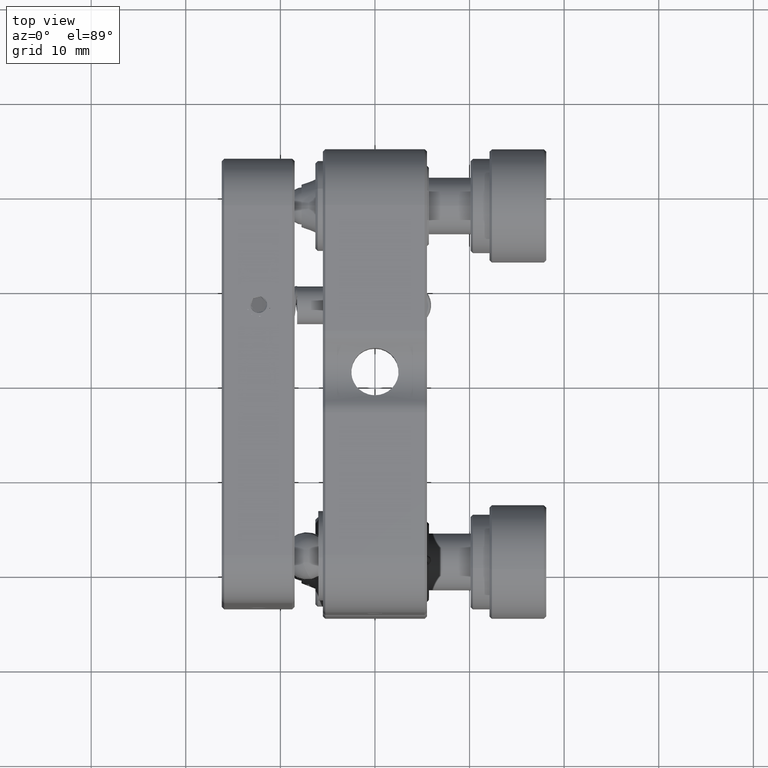
[diagram: clean part render]
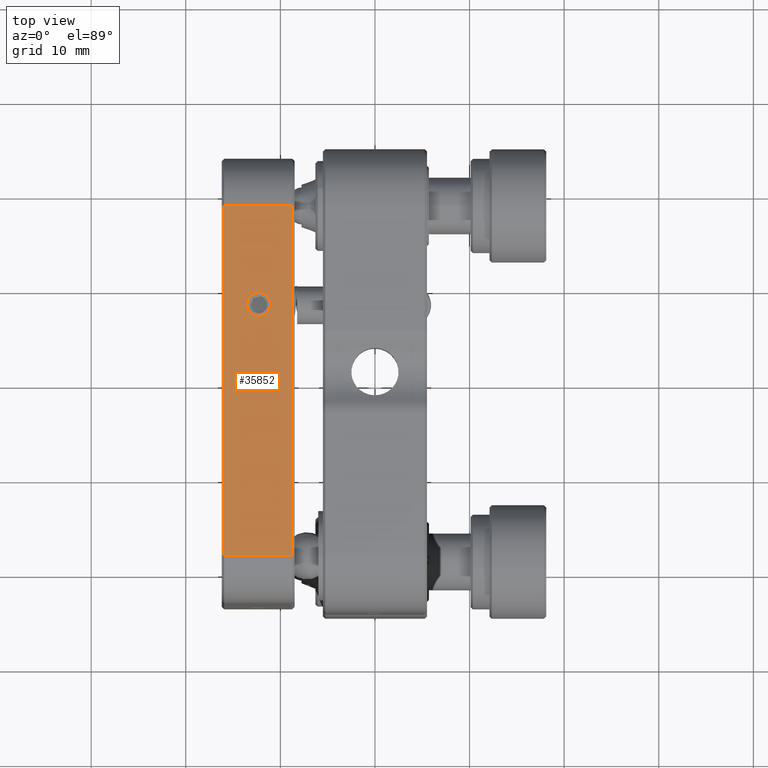
[diagram: same view with one face highlighted and labeled with its STEP entity id]
A machine part, top view. The second image highlights one B-rep face of the part: STEP entity #35852.
In plain terms, the highlighted planar face has unit normal (0, 0, -1).
Its self-contained STEP definition (entity closure, byte-faithful):
#16 = CIRCLE ( 'NONE', #57935, 1.249999999999983791 ) ;
#1458 = DIRECTION ( 'NONE',  ( -1.104617359144156568E-16, 1.000000000000000000, 3.558028576258803208E-16 ) ) ;
#1482 = VECTOR ( 'NONE', #30461, 1000.000000000000000 ) ;
#2207 = LINE ( 'NONE', #10396, #1482 ) ;
#2872 = EDGE_CURVE ( 'NONE', #57773, #40069, #16, .T. ) ;
#4400 = ORIENTED_EDGE ( 'NONE', *, *, #35566, .F. ) ;
#4426 = VERTEX_POINT ( 'NONE', #13703 ) ;
#4996 = EDGE_CURVE ( 'NONE', #24322, #36236, #2207, .T. ) ;
#7125 = CARTESIAN_POINT ( 'NONE',  ( -11.04606781186554088, 8.000000000000095923, 23.49999999999995737 ) ) ;
#7989 = DIRECTION ( 'NONE',  ( 9.734964733003764612E-17, 5.034388981345476361E-16, -1.000000000000000000 ) ) ;
#8949 = DIRECTION ( 'NONE',  ( 9.734964733003772008E-17, 3.558028576258803208E-16, -1.000000000000000000 ) ) ;
#10396 = CARTESIAN_POINT ( 'NONE',  ( -8.496067811865559705, 18.49999999999998224, 23.49999999999996092 ) ) ;
#12358 = ORIENTED_EDGE ( 'NONE', *, *, #34025, .F. ) ;
#12949 = EDGE_LOOP ( 'NONE', ( #4400, #35995, #40502, #12358 ) ) ;
#13703 = CARTESIAN_POINT ( 'NONE',  ( -15.94606781186551281, -18.49999999999993605, 23.50000000000001776 ) ) ;
#13819 = EDGE_CURVE ( 'NONE', #40069, #57773, #40912, .T. ) ;
#14354 = FACE_BOUND ( 'NONE', #24717, .T. ) ;
#16297 = CARTESIAN_POINT ( 'NONE',  ( -15.94606781186545064, 23.50000000000005329, 23.49999999999996092 ) ) ;
#17198 = ORIENTED_EDGE ( 'NONE', *, *, #13819, .T. ) ;
#17269 = DIRECTION ( 'NONE',  ( -1.000000000000000000, -1.104617359144156322E-16, -9.734964733003770775E-17 ) ) ;
#18230 = LINE ( 'NONE', #27733, #30752 ) ;
#22243 = LINE ( 'NONE', #54507, #58930 ) ;
#22630 = CARTESIAN_POINT ( 'NONE',  ( -12.29606781186552489, 8.000000000000095923, 23.49999999999995737 ) ) ;
#23050 = VECTOR ( 'NONE', #1458, 1000.000000000000000 ) ;
#24322 = VERTEX_POINT ( 'NONE', #57998 ) ;
#24717 = EDGE_LOOP ( 'NONE', ( #17198, #43825 ) ) ;
#25456 = LINE ( 'NONE', #16297, #23050 ) ;
#27018 = DIRECTION ( 'NONE',  ( -1.000000000000000000, 0.0000000000000000000, 0.0000000000000000000 ) ) ;
#27733 = CARTESIAN_POINT ( 'NONE',  ( -8.496067811865556152, -18.50000000000000711, 23.49999999999994671 ) ) ;
#28428 = AXIS2_PLACEMENT_3D ( 'NONE', #33588, #8949, #63239 ) ;
#29027 = PLANE ( 'NONE',  #28428 ) ;
#30461 = DIRECTION ( 'NONE',  ( 1.000000000000000000, 1.104617359144156322E-16, 9.734964733003770775E-17 ) ) ;
#30752 = VECTOR ( 'NONE', #17269, 1000.000000000000000 ) ;
#33588 = CARTESIAN_POINT ( 'NONE',  ( -8.496067811865595232, 23.49999999999998224, 23.49999999999996092 ) ) ;
#34025 = EDGE_CURVE ( 'NONE', #4426, #24322, #25456, .T. ) ;
#35566 = EDGE_CURVE ( 'NONE', #46448, #4426, #18230, .T. ) ;
#35852 = ADVANCED_FACE ( 'NONE', ( #14354, #52575 ), #29027, .F. ) ;
#35995 = ORIENTED_EDGE ( 'NONE', *, *, #44394, .F. ) ;
#36236 = VERTEX_POINT ( 'NONE', #59136 ) ;
#38396 = DIRECTION ( 'NONE',  ( 9.734964733003764612E-17, 5.034388981345476361E-16, -1.000000000000000000 ) ) ;
#38616 = CARTESIAN_POINT ( 'NONE',  ( -12.29606781186552489, 8.000000000000095923, 23.49999999999995737 ) ) ;
#40069 = VERTEX_POINT ( 'NONE', #60932 ) ;
#40502 = ORIENTED_EDGE ( 'NONE', *, *, #4996, .F. ) ;
#40912 = CIRCLE ( 'NONE', #62405, 1.249999999999983791 ) ;
#43825 = ORIENTED_EDGE ( 'NONE', *, *, #2872, .T. ) ;
#44394 = EDGE_CURVE ( 'NONE', #36236, #46448, #22243, .T. ) ;
#46448 = VERTEX_POINT ( 'NONE', #48722 ) ;
#48722 = CARTESIAN_POINT ( 'NONE',  ( -8.746067811865557928, -18.50000000000000711, 23.49999999999994671 ) ) ;
#52575 = FACE_OUTER_BOUND ( 'NONE', #12949, .T. ) ;
#54507 = CARTESIAN_POINT ( 'NONE',  ( -8.746067811865557928, -18.50000000000000711, 23.49999999999994671 ) ) ;
#54730 = DIRECTION ( 'NONE',  ( 1.104617359144156568E-16, -1.000000000000000000, -3.558028576258803208E-16 ) ) ;
#57773 = VERTEX_POINT ( 'NONE', #7125 ) ;
#57935 = AXIS2_PLACEMENT_3D ( 'NONE', #38616, #38396, #64114 ) ;
#57998 = CARTESIAN_POINT ( 'NONE',  ( -15.94606781186545064, 18.50000000000004974, 23.49999999999996092 ) ) ;
#58930 = VECTOR ( 'NONE', #54730, 1000.000000000000000 ) ;
#59136 = CARTESIAN_POINT ( 'NONE',  ( -8.746067811865561481, 18.49999999999998224, 23.49999999999996092 ) ) ;
#60932 = CARTESIAN_POINT ( 'NONE',  ( -13.54606781186550890, 8.000000000000095923, 23.49999999999995737 ) ) ;
#62405 = AXIS2_PLACEMENT_3D ( 'NONE', #22630, #7989, #27018 ) ;
#63239 = DIRECTION ( 'NONE',  ( 1.104617359144156568E-16, -1.000000000000000000, -3.558028576258803208E-16 ) ) ;
#64114 = DIRECTION ( 'NONE',  ( -1.000000000000000000, 0.0000000000000000000, 0.0000000000000000000 ) ) ;